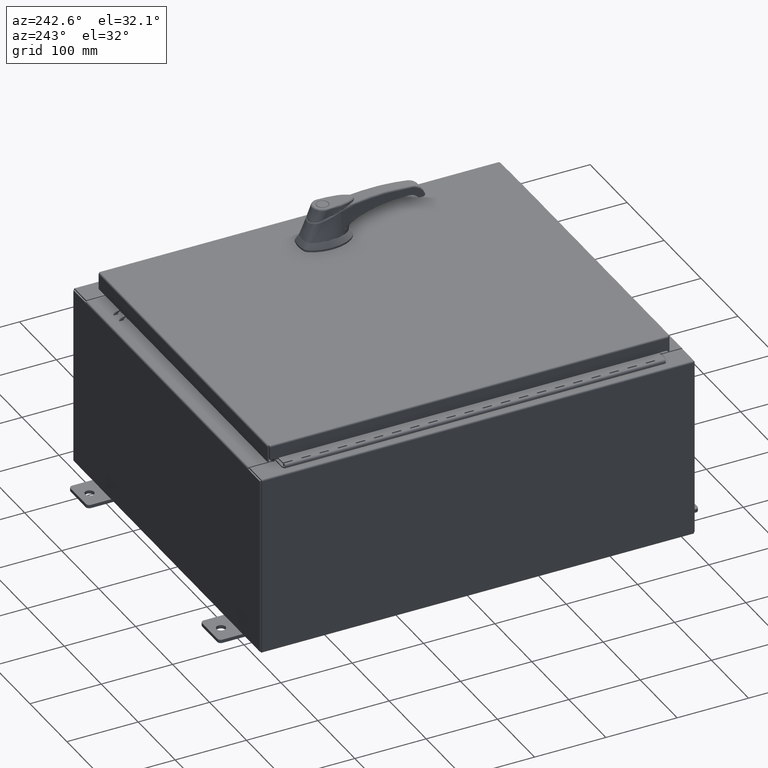
[diagram: clean part render]
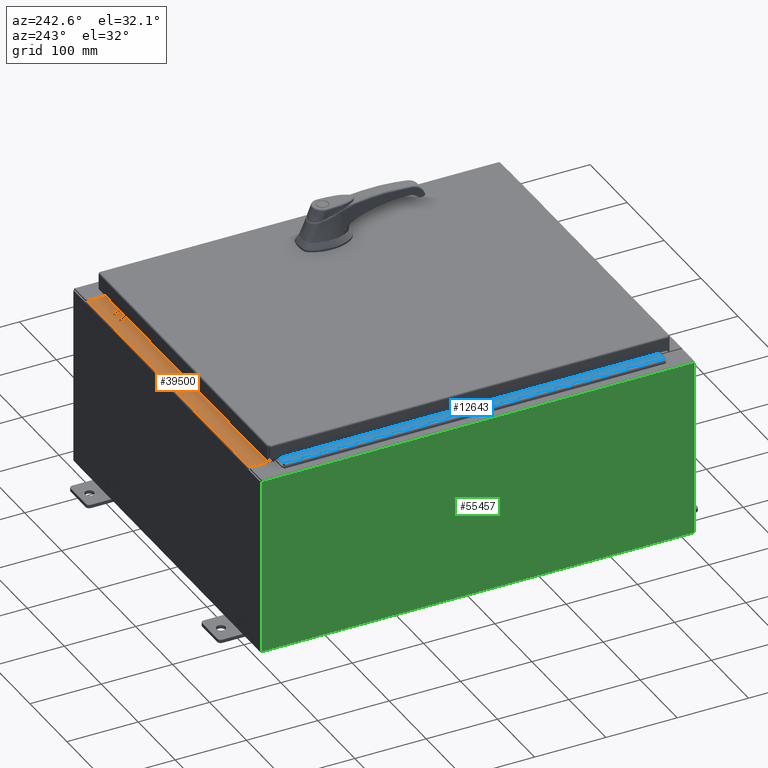
[diagram: same view with three faces highlighted in distinct colors, each labeled with its STEP entity id]
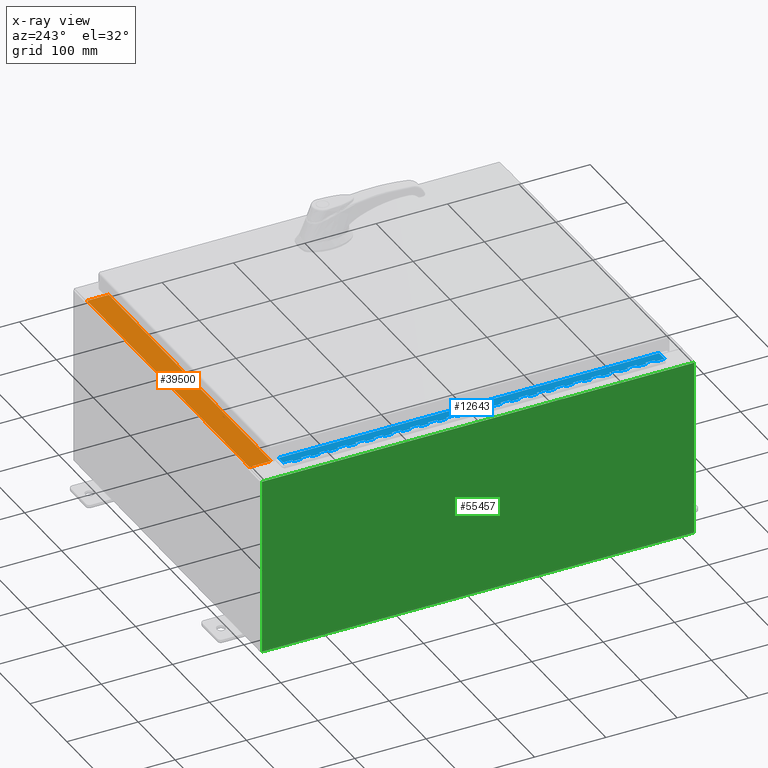
[diagram: x-ray of the same camera — body ghosted, the three highlighted faces saturated]
A machine part, auxiliary view with three faces highlighted in distinct colors.
The next image is the same camera in x-ray (body ghosted, the three faces saturated) — at least one of them is partly hidden behind the body in this view.
Their STEP definitions:

[orange] entity #39500 — the highlighted planar face has unit normal (0, 0, 1).
#542 = CARTESIAN_POINT ( 'NONE',  ( 8.637200000000000000, -1.300299999999999800, 5.000000000000004400 ) ) ;
#4826 = VECTOR ( 'NONE', #87409, 39.37007874015748100 ) ;
#7856 = VECTOR ( 'NONE', #105579, 39.37007874015748100 ) ;
#21297 = ORIENTED_EDGE ( 'NONE', *, *, #59590, .F. ) ;
#26018 = EDGE_CURVE ( 'NONE', #91501, #84611, #66295, .T. ) ;
#30757 = ORIENTED_EDGE ( 'NONE', *, *, #37994, .F. ) ;
#37712 = AXIS2_PLACEMENT_3D ( 'NONE', #48692, #111130, #58590 ) ;
#37994 = EDGE_CURVE ( 'NONE', #84611, #43539, #51492, .T. ) ;
#39500 = ADVANCED_FACE ( 'NONE', ( #91165 ), #49821, .T. ) ;
#43539 = VERTEX_POINT ( 'NONE', #94087 ) ;
#48692 = CARTESIAN_POINT ( 'NONE',  ( 0.0000000000000000000, 1.782631094477737600E-014, 5.000000000000000000 ) ) ;
#49821 = PLANE ( 'NONE',  #37712 ) ;
#51492 = LINE ( 'NONE', #95841, #4826 ) ;
#51715 = LINE ( 'NONE', #542, #7856 ) ;
#58590 = DIRECTION ( 'NONE',  ( 0.0000000000000000000, -1.000000000000000000, 3.566381192773190000E-015 ) ) ;
#58702 = DIRECTION ( 'NONE',  ( -1.000000000000000000, -6.325772226333218300E-017, 2.256011509776178200E-031 ) ) ;
#59100 = VERTEX_POINT ( 'NONE', #105790 ) ;
#59590 = EDGE_CURVE ( 'NONE', #59100, #91501, #51715, .T. ) ;
#66295 = LINE ( 'NONE', #70643, #104802 ) ;
#70643 = CARTESIAN_POINT ( 'NONE',  ( 8.637200000000000000, -1.287299999999999900, 5.000000000000003600 ) ) ;
#73544 = ORIENTED_EDGE ( 'NONE', *, *, #113538, .T. ) ;
#79732 = VECTOR ( 'NONE', #58702, 39.37007874015748100 ) ;
#80623 = CARTESIAN_POINT ( 'NONE',  ( -8.637200000000000000, -1.287299999999999200, 5.000000000000004400 ) ) ;
#83406 = CARTESIAN_POINT ( 'NONE',  ( 8.637200000000000000, -1.287299999999999900, 5.000000000000004400 ) ) ;
#84611 = VERTEX_POINT ( 'NONE', #80623 ) ;
#87310 = EDGE_LOOP ( 'NONE', ( #30757, #107015, #21297, #73544 ) ) ;
#87409 = DIRECTION ( 'NONE',  ( -0.0000000000000000000, 1.000000000000000000, -3.566381192773190000E-015 ) ) ;
#91165 = FACE_OUTER_BOUND ( 'NONE', #87310, .T. ) ;
#91501 = VERTEX_POINT ( 'NONE', #83406 ) ;
#94087 = CARTESIAN_POINT ( 'NONE',  ( -8.637200000000000000, -0.08770000000000081900, 5.000000000000000000 ) ) ;
#95841 = CARTESIAN_POINT ( 'NONE',  ( -8.637200000000000000, -0.07469999999999973900, 5.000000000000000000 ) ) ;
#97115 = DIRECTION ( 'NONE',  ( -1.000000000000000000, 0.0000000000000000000, 0.0000000000000000000 ) ) ;
#102522 = CARTESIAN_POINT ( 'NONE',  ( 5.547702242495411600E-018, -0.08770000000000081900, 5.000000000000000000 ) ) ;
#103131 = LINE ( 'NONE', #102522, #79732 ) ;
#104802 = VECTOR ( 'NONE', #97115, 39.37007874015748100 ) ;
#105579 = DIRECTION ( 'NONE',  ( -0.0000000000000000000, -1.000000000000000000, 3.566381192773190000E-015 ) ) ;
#105790 = CARTESIAN_POINT ( 'NONE',  ( 8.637200000000000000, -0.08770000000000047200, 5.000000000000000000 ) ) ;
#107015 = ORIENTED_EDGE ( 'NONE', *, *, #26018, .F. ) ;
#111130 = DIRECTION ( 'NONE',  ( 0.0000000000000000000, 3.566381192773190000E-015, 1.000000000000000000 ) ) ;
#113538 = EDGE_CURVE ( 'NONE', #59100, #43539, #103131, .T. ) ;

[blue] entity #12643 — the highlighted planar face has unit normal (-0, -0, 1).
#287 = CARTESIAN_POINT ( 'NONE',  ( -0.6869999999999982800, 0.5504999999999997700, -14.49999999999999800 ) ) ;
#363 = CARTESIAN_POINT ( 'NONE',  ( -0.6869999999999973900, 0.8004999999999995500, -17.50000000000000000 ) ) ;
#384 = DIRECTION ( 'NONE',  ( -3.389037039080723100E-015, -1.000000000000000000, 0.0000000000000000000 ) ) ;
#509 = VECTOR ( 'NONE', #75334, 39.37007874015748100 ) ;
#980 = DIRECTION ( 'NONE',  ( 0.0000000000000000000, -0.0000000000000000000, -1.000000000000000000 ) ) ;
#1204 = EDGE_CURVE ( 'NONE', #11150, #112337, #33061, .T. ) ;
#1372 = CARTESIAN_POINT ( 'NONE',  ( -0.6869999999999978300, 0.6754999999999996600, -17.00000000000000000 ) ) ;
#1525 = ORIENTED_EDGE ( 'NONE', *, *, #34455, .F. ) ;
#1571 = EDGE_CURVE ( 'NONE', #92335, #63316, #107053, .T. ) ;
#1901 = CARTESIAN_POINT ( 'NONE',  ( -0.6869999999999982800, 0.5504999999999997700, -5.500000000000000000 ) ) ;
#1942 = CARTESIAN_POINT ( 'NONE',  ( -0.6869999999999978300, 0.6754999999999996600, -21.00000000000000000 ) ) ;
#2036 = DIRECTION ( 'NONE',  ( 0.0000000000000000000, -0.0000000000000000000, -1.000000000000000000 ) ) ;
#2067 = VERTEX_POINT ( 'NONE', #25642 ) ;
#2119 = ORIENTED_EDGE ( 'NONE', *, *, #51321, .F. ) ;
#2436 = ORIENTED_EDGE ( 'NONE', *, *, #86983, .F. ) ;
#2652 = CARTESIAN_POINT ( 'NONE',  ( -0.6869999999999982800, 0.5504999999999997700, -6.499999999999999100 ) ) ;
#2771 = CARTESIAN_POINT ( 'NONE',  ( -0.6869999999999982800, 0.5504999999999997700, -12.49999999999999800 ) ) ;
#3132 = DIRECTION ( 'NONE',  ( 0.0000000000000000000, 0.0000000000000000000, 1.000000000000000000 ) ) ;
#3412 = VECTOR ( 'NONE', #97662, 39.37007874015748100 ) ;
#3496 = DIRECTION ( 'NONE',  ( 3.389037039080723100E-015, 1.000000000000000000, -0.0000000000000000000 ) ) ;
#3587 = CARTESIAN_POINT ( 'NONE',  ( -0.6869999999999982800, 0.5504999999999997700, -7.000000000000000000 ) ) ;
#3712 = VECTOR ( 'NONE', #46907, 39.37007874015748100 ) ;
#3812 = CARTESIAN_POINT ( 'NONE',  ( -0.6869999999999982800, 0.5504999999999997700, -15.50000000000000000 ) ) ;
#3935 = LINE ( 'NONE', #71245, #94447 ) ;
#3966 = CARTESIAN_POINT ( 'NONE',  ( -0.6869999999999982800, 0.5504999999999997700, -7.499999999999999100 ) ) ;
#4198 = CARTESIAN_POINT ( 'NONE',  ( -0.6869999999999973900, 0.8004999999999995500, -6.000000000000000900 ) ) ;
#4215 = LINE ( 'NONE', #113228, #97449 ) ;
#4389 = CARTESIAN_POINT ( 'NONE',  ( -0.6869999999999978300, 0.6754999999999996600, -21.00000000000000000 ) ) ;
#4397 = VERTEX_POINT ( 'NONE', #102975 ) ;
#4562 = ORIENTED_EDGE ( 'NONE', *, *, #17817, .F. ) ;
#4980 = CARTESIAN_POINT ( 'NONE',  ( -0.6869999999999978300, 0.6754999999999996600, -21.00000000000000000 ) ) ;
#5018 = LINE ( 'NONE', #63951, #25550 ) ;
#5069 = ORIENTED_EDGE ( 'NONE', *, *, #107690, .F. ) ;
#5643 = VERTEX_POINT ( 'NONE', #88205 ) ;
#5677 = LINE ( 'NONE', #110279, #44068 ) ;
#5683 = CARTESIAN_POINT ( 'NONE',  ( -0.6869999999999982800, 0.5504999999999997700, -11.50000000000000000 ) ) ;
#5945 = VERTEX_POINT ( 'NONE', #39670 ) ;
#5958 = EDGE_CURVE ( 'NONE', #5945, #8568, #56586, .T. ) ;
#6082 = EDGE_CURVE ( 'NONE', #86339, #59571, #51158, .T. ) ;
#6093 = EDGE_CURVE ( 'NONE', #43105, #28919, #74341, .T. ) ;
#6962 = CARTESIAN_POINT ( 'NONE',  ( -0.6869999999999982800, 0.5504999999999997700, -6.000000000000000900 ) ) ;
#6998 = VECTOR ( 'NONE', #78431, 39.37007874015748100 ) ;
#7092 = EDGE_CURVE ( 'NONE', #26241, #55311, #74229, .T. ) ;
#7109 = VERTEX_POINT ( 'NONE', #97252 ) ;
#7470 = LINE ( 'NONE', #68810, #51341 ) ;
#7503 = VERTEX_POINT ( 'NONE', #44634 ) ;
#7559 = DIRECTION ( 'NONE',  ( -3.389037039080723100E-015, -1.000000000000000000, 0.0000000000000000000 ) ) ;
#7564 = VERTEX_POINT ( 'NONE', #75719 ) ;
#7609 = CARTESIAN_POINT ( 'NONE',  ( -0.6869999999999973900, 0.8004999999999995500, -14.49999999999999800 ) ) ;
#7662 = CARTESIAN_POINT ( 'NONE',  ( -0.6869999999999978300, 0.6754999999999996600, -11.99999999999999800 ) ) ;
#7735 = ORIENTED_EDGE ( 'NONE', *, *, #29061, .F. ) ;
#7984 = LINE ( 'NONE', #53488, #31262 ) ;
#8568 = VERTEX_POINT ( 'NONE', #7662 ) ;
#8699 = ORIENTED_EDGE ( 'NONE', *, *, #78244, .F. ) ;
#8881 = ORIENTED_EDGE ( 'NONE', *, *, #54348, .T. ) ;
#8884 = EDGE_CURVE ( 'NONE', #10958, #89489, #35728, .T. ) ;
#9328 = VERTEX_POINT ( 'NONE', #101169 ) ;
#9361 = ORIENTED_EDGE ( 'NONE', *, *, #30060, .F. ) ;
#9920 = EDGE_CURVE ( 'NONE', #30490, #8568, #34434, .T. ) ;
#9927 = CARTESIAN_POINT ( 'NONE',  ( -0.6869999999999982800, 0.5504999999999997700, -17.50000000000000000 ) ) ;
#10092 = DIRECTION ( 'NONE',  ( 0.0000000000000000000, -0.0000000000000000000, -1.000000000000000000 ) ) ;
#10292 = EDGE_CURVE ( 'NONE', #60161, #73834, #46761, .T. ) ;
#10578 = VECTOR ( 'NONE', #85571, 39.37007874015748100 ) ;
#10673 = ORIENTED_EDGE ( 'NONE', *, *, #32286, .T. ) ;
#10675 = LINE ( 'NONE', #73867, #103956 ) ;
#10722 = CARTESIAN_POINT ( 'NONE',  ( -0.6869999999999973900, 0.8004999999999995500, -11.50000000000000000 ) ) ;
#10958 = VERTEX_POINT ( 'NONE', #108718 ) ;
#10965 = ORIENTED_EDGE ( 'NONE', *, *, #57411, .T. ) ;
#10998 = LINE ( 'NONE', #52199, #106959 ) ;
#11094 = VECTOR ( 'NONE', #99358, 39.37007874015748100 ) ;
#11150 = VERTEX_POINT ( 'NONE', #56703 ) ;
#11215 = VERTEX_POINT ( 'NONE', #44008 ) ;
#11219 = ORIENTED_EDGE ( 'NONE', *, *, #1204, .F. ) ;
#11375 = ORIENTED_EDGE ( 'NONE', *, *, #20985, .F. ) ;
#11519 = EDGE_CURVE ( 'NONE', #89489, #74130, #32920, .T. ) ;
#11615 = CARTESIAN_POINT ( 'NONE',  ( -0.6869999999999978300, 0.6754999999999996600, -8.500000000000000000 ) ) ;
#11713 = CARTESIAN_POINT ( 'NONE',  ( -0.6869999999999973900, 0.8004999999999995500, -8.500000000000000000 ) ) ;
#11752 = CARTESIAN_POINT ( 'NONE',  ( -0.6869999999999978300, 0.6754999999999996600, -21.00000000000000000 ) ) ;
#12080 = LINE ( 'NONE', #32265, #55901 ) ;
#12264 = VECTOR ( 'NONE', #384, 39.37007874015748100 ) ;
#12426 = VERTEX_POINT ( 'NONE', #34199 ) ;
#12434 = VECTOR ( 'NONE', #64421, 39.37007874015748100 ) ;
#12546 = CARTESIAN_POINT ( 'NONE',  ( -0.6869999999999982800, 0.5504999999999997700, -10.50000000000000000 ) ) ;
#12617 = CARTESIAN_POINT ( 'NONE',  ( -0.6869999999999978300, 0.6754999999999996600, -5.000000000000000000 ) ) ;
#12643 = ADVANCED_FACE ( 'NONE', ( #47855 ), #111859, .T. ) ;
#13878 = EDGE_CURVE ( 'NONE', #40748, #74130, #106717, .T. ) ;
#14092 = DIRECTION ( 'NONE',  ( 0.0000000000000000000, 0.0000000000000000000, 1.000000000000000000 ) ) ;
#14126 = CARTESIAN_POINT ( 'NONE',  ( -0.6869999999999982800, 0.5504999999999997700, -12.49999999999999800 ) ) ;
#14324 = VERTEX_POINT ( 'NONE', #41616 ) ;
#14680 = CARTESIAN_POINT ( 'NONE',  ( -0.6869999999999978300, 0.6754999999999996600, -2.999999999999999600 ) ) ;
#14744 = VECTOR ( 'NONE', #74392, 39.37007874015748100 ) ;
#14951 = CARTESIAN_POINT ( 'NONE',  ( -0.6869999999999978300, 0.6754999999999996600, -11.00000000000000000 ) ) ;
#14961 = VERTEX_POINT ( 'NONE', #9927 ) ;
#14996 = LINE ( 'NONE', #78562, #87689 ) ;
#15253 = LINE ( 'NONE', #63684, #35821 ) ;
#15423 = CARTESIAN_POINT ( 'NONE',  ( -0.6869999999999973900, 0.8004999999999995500, -9.500000000000000000 ) ) ;
#15481 = VECTOR ( 'NONE', #96292, 39.37007874015748100 ) ;
#15571 = ORIENTED_EDGE ( 'NONE', *, *, #51945, .F. ) ;
#16042 = VECTOR ( 'NONE', #108985, 39.37007874015748100 ) ;
#16448 = LINE ( 'NONE', #52270, #36980 ) ;
#16470 = EDGE_CURVE ( 'NONE', #37313, #46828, #28272, .T. ) ;
#16498 = VERTEX_POINT ( 'NONE', #52299 ) ;
#17025 = CARTESIAN_POINT ( 'NONE',  ( -0.6869999999999982800, 0.5504999999999997700, -2.999999999999999600 ) ) ;
#17223 = ORIENTED_EDGE ( 'NONE', *, *, #87252, .F. ) ;
#17260 = DIRECTION ( 'NONE',  ( 0.0000000000000000000, 0.0000000000000000000, 1.000000000000000000 ) ) ;
#17340 = EDGE_CURVE ( 'NONE', #49948, #112337, #56955, .T. ) ;
#17817 = EDGE_CURVE ( 'NONE', #79193, #11150, #29483, .T. ) ;
#17977 = EDGE_CURVE ( 'NONE', #41165, #87680, #109006, .T. ) ;
#18234 = ORIENTED_EDGE ( 'NONE', *, *, #38840, .F. ) ;
#18628 = VERTEX_POINT ( 'NONE', #45186 ) ;
#18751 = VECTOR ( 'NONE', #96254, 39.37007874015748100 ) ;
#18910 = CARTESIAN_POINT ( 'NONE',  ( -0.6869999999999978300, 0.6754999999999996600, -3.500000000000000000 ) ) ;
#19322 = EDGE_CURVE ( 'NONE', #48142, #76769, #7984, .T. ) ;
#19490 = DIRECTION ( 'NONE',  ( 0.0000000000000000000, -0.0000000000000000000, -1.000000000000000000 ) ) ;
#19632 = EDGE_CURVE ( 'NONE', #102421, #70949, #87458, .T. ) ;
#19881 = VECTOR ( 'NONE', #3132, 39.37007874015748100 ) ;
#20094 = LINE ( 'NONE', #101618, #66659 ) ;
#20505 = VECTOR ( 'NONE', #28357, 39.37007874015748100 ) ;
#20592 = CARTESIAN_POINT ( 'NONE',  ( -0.6870000000000022800, -0.6245000000000003900, 0.0000000000000000000 ) ) ;
#20780 = VERTEX_POINT ( 'NONE', #12617 ) ;
#20837 = CARTESIAN_POINT ( 'NONE',  ( -0.6869999999999978300, 0.6754999999999996600, -1.000000000000000000 ) ) ;
#20985 = EDGE_CURVE ( 'NONE', #26241, #32524, #83198, .T. ) ;
#21345 = LINE ( 'NONE', #93983, #67936 ) ;
#21472 = DIRECTION ( 'NONE',  ( 0.0000000000000000000, -0.0000000000000000000, -1.000000000000000000 ) ) ;
#22228 = VECTOR ( 'NONE', #72954, 39.37007874015748100 ) ;
#22485 = VECTOR ( 'NONE', #43137, 39.37007874015748100 ) ;
#22654 = LINE ( 'NONE', #63616, #69265 ) ;
#22661 = EDGE_CURVE ( 'NONE', #96480, #14324, #95511, .T. ) ;
#22763 = CARTESIAN_POINT ( 'NONE',  ( -0.6869999999999973900, 0.8004999999999995500, -10.00000000000000000 ) ) ;
#22924 = DIRECTION ( 'NONE',  ( 0.0000000000000000000, -0.0000000000000000000, -1.000000000000000000 ) ) ;
#23026 = EDGE_CURVE ( 'NONE', #47933, #49288, #52980, .T. ) ;
#23035 = ORIENTED_EDGE ( 'NONE', *, *, #104029, .F. ) ;
#23225 = CARTESIAN_POINT ( 'NONE',  ( -0.6869999999999978300, 0.6754999999999996600, -14.00000000000000000 ) ) ;
#23435 = CARTESIAN_POINT ( 'NONE',  ( -0.6869999999999978300, 0.6754999999999996600, -2.500000000000000000 ) ) ;
#23507 = EDGE_CURVE ( 'NONE', #32524, #18628, #83103, .T. ) ;
#23634 = LINE ( 'NONE', #363, #90847 ) ;
#23703 = CARTESIAN_POINT ( 'NONE',  ( -0.6869999999999978300, 0.6754999999999996600, -1.499999999999999800 ) ) ;
#23728 = VECTOR ( 'NONE', #56421, 39.37007874015748100 ) ;
#24068 = LINE ( 'NONE', #65813, #111832 ) ;
#24655 = ORIENTED_EDGE ( 'NONE', *, *, #19322, .F. ) ;
#24675 = ORIENTED_EDGE ( 'NONE', *, *, #108787, .T. ) ;
#24685 = CARTESIAN_POINT ( 'NONE',  ( -0.6869999999999973900, 0.8004999999999995500, -17.00000000000000000 ) ) ;
#24747 = VECTOR ( 'NONE', #87038, 39.37007874015748100 ) ;
#25039 = LINE ( 'NONE', #49487, #68927 ) ;
#25550 = VECTOR ( 'NONE', #65092, 39.37007874015748100 ) ;
#25642 = CARTESIAN_POINT ( 'NONE',  ( -0.6869999999999978300, 0.6754999999999996600, -18.50000000000000000 ) ) ;
#25678 = LINE ( 'NONE', #78711, #113441 ) ;
#25803 = VECTOR ( 'NONE', #3496, 39.37007874015748100 ) ;
#25839 = EDGE_CURVE ( 'NONE', #102421, #96305, #45815, .T. ) ;
#26211 = EDGE_CURVE ( 'NONE', #80055, #10958, #67630, .T. ) ;
#26241 = VERTEX_POINT ( 'NONE', #92505 ) ;
#26307 = LINE ( 'NONE', #22763, #52419 ) ;
#26721 = LINE ( 'NONE', #26761, #3412 ) ;
#26761 = CARTESIAN_POINT ( 'NONE',  ( -0.6869999999999973900, 0.8004999999999995500, -17.99999999999999600 ) ) ;
#26865 = VECTOR ( 'NONE', #50220, 39.37007874015748100 ) ;
#27038 = ORIENTED_EDGE ( 'NONE', *, *, #16470, .T. ) ;
#27081 = CARTESIAN_POINT ( 'NONE',  ( -0.6870000000000022800, -0.6245000000000003900, -21.00000000000000000 ) ) ;
#27401 = ORIENTED_EDGE ( 'NONE', *, *, #44043, .F. ) ;
#27465 = LINE ( 'NONE', #49249, #50847 ) ;
#27529 = VECTOR ( 'NONE', #2036, 39.37007874015748100 ) ;
#27857 = VERTEX_POINT ( 'NONE', #50749 ) ;
#27943 = DIRECTION ( 'NONE',  ( -3.389037039080723100E-015, -1.000000000000000000, 0.0000000000000000000 ) ) ;
#28255 = CARTESIAN_POINT ( 'NONE',  ( -0.6869999999999973900, 0.8004999999999995500, -2.000000000000000000 ) ) ;
#28272 = LINE ( 'NONE', #69502, #69413 ) ;
#28357 = DIRECTION ( 'NONE',  ( 0.0000000000000000000, 0.0000000000000000000, 1.000000000000000000 ) ) ;
#28557 = LINE ( 'NONE', #47186, #25803 ) ;
#28632 = ORIENTED_EDGE ( 'NONE', *, *, #28867, .F. ) ;
#28851 = DIRECTION ( 'NONE',  ( -3.389037039080723100E-015, -1.000000000000000000, 0.0000000000000000000 ) ) ;
#28867 = EDGE_CURVE ( 'NONE', #58901, #7109, #5677, .T. ) ;
#28919 = VERTEX_POINT ( 'NONE', #68471 ) ;
#29061 = EDGE_CURVE ( 'NONE', #7564, #60161, #30294, .T. ) ;
#29259 = CARTESIAN_POINT ( 'NONE',  ( -0.6869999999999973900, 0.8004999999999995500, -2.999999999999999600 ) ) ;
#29483 = LINE ( 'NONE', #99995, #96695 ) ;
#29620 = CARTESIAN_POINT ( 'NONE',  ( -0.6869999999999982800, 0.5504999999999997700, -8.500000000000000000 ) ) ;
#29777 = DIRECTION ( 'NONE',  ( 3.369016658928398200E-015, 1.000000000000000000, 0.0000000000000000000 ) ) ;
#30060 = EDGE_CURVE ( 'NONE', #37454, #101972, #94652, .T. ) ;
#30218 = DIRECTION ( 'NONE',  ( 0.0000000000000000000, -0.0000000000000000000, -1.000000000000000000 ) ) ;
#30294 = LINE ( 'NONE', #87254, #6998 ) ;
#30490 = VERTEX_POINT ( 'NONE', #44793 ) ;
#30569 = AXIS2_PLACEMENT_3D ( 'NONE', #111744, #111501, #111467 ) ;
#30694 = CARTESIAN_POINT ( 'NONE',  ( -0.6869999999999982800, 0.5504999999999997700, -12.99999999999999800 ) ) ;
#31192 = ORIENTED_EDGE ( 'NONE', *, *, #47888, .F. ) ;
#31262 = VECTOR ( 'NONE', #980, 39.37007874015748100 ) ;
#32008 = CARTESIAN_POINT ( 'NONE',  ( -0.6869999999999982800, 0.5504999999999997700, -10.00000000000000000 ) ) ;
#32107 = VECTOR ( 'NONE', #107020, 39.37007874015748100 ) ;
#32140 = VERTEX_POINT ( 'NONE', #106369 ) ;
#32265 = CARTESIAN_POINT ( 'NONE',  ( -0.6869999999999978300, 0.6754999999999996600, -21.00000000000000000 ) ) ;
#32286 = EDGE_CURVE ( 'NONE', #7564, #7503, #93663, .T. ) ;
#32505 = CARTESIAN_POINT ( 'NONE',  ( -0.6869999999999982800, 0.5504999999999997700, -3.500000000000000000 ) ) ;
#32524 = VERTEX_POINT ( 'NONE', #60622 ) ;
#32618 = EDGE_CURVE ( 'NONE', #64167, #5945, #82689, .T. ) ;
#32771 = CARTESIAN_POINT ( 'NONE',  ( -0.6869999999999973900, 0.8004999999999995500, -11.99999999999999800 ) ) ;
#32920 = LINE ( 'NONE', #109838, #100116 ) ;
#33061 = LINE ( 'NONE', #28255, #79629 ) ;
#33074 = LINE ( 'NONE', #2771, #27529 ) ;
#33124 = LINE ( 'NONE', #50723, #76950 ) ;
#33189 = VECTOR ( 'NONE', #41710, 39.37007874015748100 ) ;
#33531 = DIRECTION ( 'NONE',  ( 3.389037039080723100E-015, 1.000000000000000000, -0.0000000000000000000 ) ) ;
#33543 = CARTESIAN_POINT ( 'NONE',  ( -0.6869999999999973900, 0.8004999999999995500, -9.000000000000000000 ) ) ;
#33975 = VECTOR ( 'NONE', #39427, 39.37007874015748100 ) ;
#34199 = CARTESIAN_POINT ( 'NONE',  ( -0.6869999999999978300, 0.6754999999999996600, -10.50000000000000000 ) ) ;
#34351 = ORIENTED_EDGE ( 'NONE', *, *, #53253, .F. ) ;
#34352 = LINE ( 'NONE', #46667, #98823 ) ;
#34434 = LINE ( 'NONE', #52340, #54975 ) ;
#34455 = EDGE_CURVE ( 'NONE', #14324, #56658, #15253, .T. ) ;
#35075 = ORIENTED_EDGE ( 'NONE', *, *, #93564, .F. ) ;
#35559 = LINE ( 'NONE', #105425, #12264 ) ;
#35728 = LINE ( 'NONE', #3812, #12434 ) ;
#35821 = VECTOR ( 'NONE', #72490, 39.37007874015748100 ) ;
#35934 = EDGE_CURVE ( 'NONE', #87680, #89793, #33124, .T. ) ;
#36045 = ORIENTED_EDGE ( 'NONE', *, *, #8884, .F. ) ;
#36348 = CARTESIAN_POINT ( 'NONE',  ( -0.6869999999999978300, 0.6754999999999996600, -19.50000000000000000 ) ) ;
#36361 = CARTESIAN_POINT ( 'NONE',  ( -0.6869999999999973900, 0.8004999999999995500, -20.50000000000000400 ) ) ;
#36403 = DIRECTION ( 'NONE',  ( 0.0000000000000000000, 0.0000000000000000000, 1.000000000000000000 ) ) ;
#36941 = EDGE_CURVE ( 'NONE', #49646, #81381, #27465, .T. ) ;
#36980 = VECTOR ( 'NONE', #96302, 39.37007874015748100 ) ;
#37258 = CARTESIAN_POINT ( 'NONE',  ( -0.6869999999999982800, 0.5504999999999997700, -17.50000000000000000 ) ) ;
#37313 = VERTEX_POINT ( 'NONE', #18910 ) ;
#37416 = LINE ( 'NONE', #92225, #104706 ) ;
#37436 = EDGE_CURVE ( 'NONE', #14961, #49216, #90507, .T. ) ;
#37454 = VERTEX_POINT ( 'NONE', #99370 ) ;
#37868 = DIRECTION ( 'NONE',  ( -3.389037039080723100E-015, -1.000000000000000000, 0.0000000000000000000 ) ) ;
#37999 = VECTOR ( 'NONE', #75445, 39.37007874015748100 ) ;
#38099 = DIRECTION ( 'NONE',  ( -3.389037039080723100E-015, -1.000000000000000000, 0.0000000000000000000 ) ) ;
#38840 = EDGE_CURVE ( 'NONE', #104157, #92335, #76142, .T. ) ;
#39128 = EDGE_CURVE ( 'NONE', #9328, #86892, #98114, .T. ) ;
#39261 = EDGE_CURVE ( 'NONE', #30490, #61271, #22654, .T. ) ;
#39295 = ORIENTED_EDGE ( 'NONE', *, *, #84327, .T. ) ;
#39341 = ORIENTED_EDGE ( 'NONE', *, *, #79386, .F. ) ;
#39427 = DIRECTION ( 'NONE',  ( 3.389037039080723100E-015, 1.000000000000000000, -0.0000000000000000000 ) ) ;
#39670 = CARTESIAN_POINT ( 'NONE',  ( -0.6869999999999982800, 0.5504999999999997700, -11.99999999999999800 ) ) ;
#39757 = ORIENTED_EDGE ( 'NONE', *, *, #13878, .T. ) ;
#40042 = ORIENTED_EDGE ( 'NONE', *, *, #57700, .F. ) ;
#40298 = DIRECTION ( 'NONE',  ( 0.0000000000000000000, 0.0000000000000000000, 1.000000000000000000 ) ) ;
#40578 = LINE ( 'NONE', #53826, #107773 ) ;
#40737 = ORIENTED_EDGE ( 'NONE', *, *, #23026, .F. ) ;
#40748 = VERTEX_POINT ( 'NONE', #67683 ) ;
#41165 = VERTEX_POINT ( 'NONE', #67589 ) ;
#41374 = CARTESIAN_POINT ( 'NONE',  ( -0.6869999999999982800, 0.5504999999999997700, -6.499999999999999100 ) ) ;
#41509 = EDGE_CURVE ( 'NONE', #49646, #46931, #25039, .T. ) ;
#41562 = VECTOR ( 'NONE', #97585, 39.37007874015748100 ) ;
#41616 = CARTESIAN_POINT ( 'NONE',  ( -0.6869999999999982800, 0.5504999999999997700, -20.00000000000000000 ) ) ;
#41710 = DIRECTION ( 'NONE',  ( 0.0000000000000000000, 0.0000000000000000000, 1.000000000000000000 ) ) ;
#41996 = EDGE_CURVE ( 'NONE', #11215, #14961, #23634, .T. ) ;
#42095 = LINE ( 'NONE', #43425, #18751 ) ;
#42345 = LINE ( 'NONE', #4980, #62818 ) ;
#42522 = EDGE_CURVE ( 'NONE', #16498, #20780, #42803, .T. ) ;
#42803 = LINE ( 'NONE', #11752, #22228 ) ;
#42864 = EDGE_CURVE ( 'NONE', #66797, #55311, #52372, .T. ) ;
#43017 = EDGE_CURVE ( 'NONE', #98707, #66797, #87976, .T. ) ;
#43105 = VERTEX_POINT ( 'NONE', #83128 ) ;
#43137 = DIRECTION ( 'NONE',  ( -3.389037039080723100E-015, -1.000000000000000000, 0.0000000000000000000 ) ) ;
#43425 = CARTESIAN_POINT ( 'NONE',  ( -0.6869999999999973900, 0.8004999999999995500, -19.00000000000000000 ) ) ;
#43581 = CARTESIAN_POINT ( 'NONE',  ( -0.6869999999999978300, 0.6754999999999996600, -2.000000000000000000 ) ) ;
#43748 = CARTESIAN_POINT ( 'NONE',  ( -0.6869999999999978300, 0.6754999999999996600, -21.00000000000000000 ) ) ;
#43759 = VECTOR ( 'NONE', #47870, 39.37007874015748100 ) ;
#43927 = CARTESIAN_POINT ( 'NONE',  ( -0.6869999999999978300, 0.6754999999999996600, -8.000000000000000000 ) ) ;
#43929 = CARTESIAN_POINT ( 'NONE',  ( -0.6869999999999978300, 0.6754999999999996600, -19.00000000000000000 ) ) ;
#44008 = CARTESIAN_POINT ( 'NONE',  ( -0.6869999999999978300, 0.6754999999999996600, -17.50000000000000000 ) ) ;
#44043 = EDGE_CURVE ( 'NONE', #86892, #53829, #42095, .T. ) ;
#44068 = VECTOR ( 'NONE', #22924, 39.37007874015748100 ) ;
#44083 = DIRECTION ( 'NONE',  ( -3.389037039080723100E-015, -1.000000000000000000, 0.0000000000000000000 ) ) ;
#44354 = EDGE_CURVE ( 'NONE', #104157, #71976, #5018, .T. ) ;
#44395 = VECTOR ( 'NONE', #28851, 39.37007874015748100 ) ;
#44634 = CARTESIAN_POINT ( 'NONE',  ( -0.6869999999999978300, 0.6754999999999996600, -4.000000000000000000 ) ) ;
#44793 = CARTESIAN_POINT ( 'NONE',  ( -0.6869999999999978300, 0.6754999999999996600, -12.49999999999999800 ) ) ;
#45045 = EDGE_CURVE ( 'NONE', #76769, #52863, #83117, .T. ) ;
#45186 = CARTESIAN_POINT ( 'NONE',  ( -0.6869999999999978300, 0.6754999999999996600, 0.0000000000000000000 ) ) ;
#45815 = LINE ( 'NONE', #77974, #22485 ) ;
#46667 = CARTESIAN_POINT ( 'NONE',  ( -0.6869999999999982800, 0.5504999999999997700, -5.500000000000000000 ) ) ;
#46761 = LINE ( 'NONE', #85559, #85135 ) ;
#46828 = VERTEX_POINT ( 'NONE', #14680 ) ;
#46907 = DIRECTION ( 'NONE',  ( 3.389037039080723100E-015, 1.000000000000000000, -0.0000000000000000000 ) ) ;
#46931 = VERTEX_POINT ( 'NONE', #47814 ) ;
#47186 = CARTESIAN_POINT ( 'NONE',  ( -0.6869999999999973900, 0.8004999999999995500, -5.000000000000000000 ) ) ;
#47308 = CARTESIAN_POINT ( 'NONE',  ( -0.6869999999999978300, 0.6754999999999996600, -16.00000000000000000 ) ) ;
#47356 = ORIENTED_EDGE ( 'NONE', *, *, #55564, .F. ) ;
#47814 = CARTESIAN_POINT ( 'NONE',  ( -0.6869999999999978300, 0.6754999999999996600, -6.000000000000000900 ) ) ;
#47855 = FACE_OUTER_BOUND ( 'NONE', #86808, .T. ) ;
#47870 = DIRECTION ( 'NONE',  ( 3.389037039080723100E-015, 1.000000000000000000, -0.0000000000000000000 ) ) ;
#47888 = EDGE_CURVE ( 'NONE', #5643, #100681, #70411, .T. ) ;
#47933 = VERTEX_POINT ( 'NONE', #32505 ) ;
#48142 = VERTEX_POINT ( 'NONE', #12546 ) ;
#48371 = VECTOR ( 'NONE', #49991, 39.37007874015748100 ) ;
#48515 = DIRECTION ( 'NONE',  ( -3.389037039080723100E-015, -1.000000000000000000, 0.0000000000000000000 ) ) ;
#48537 = ORIENTED_EDGE ( 'NONE', *, *, #90942, .F. ) ;
#49019 = ORIENTED_EDGE ( 'NONE', *, *, #86955, .T. ) ;
#49064 = DIRECTION ( 'NONE',  ( 0.0000000000000000000, 0.0000000000000000000, 1.000000000000000000 ) ) ;
#49216 = VERTEX_POINT ( 'NONE', #75348 ) ;
#49249 = CARTESIAN_POINT ( 'NONE',  ( -0.6869999999999973900, 0.8004999999999995500, -6.499999999999999100 ) ) ;
#49288 = VERTEX_POINT ( 'NONE', #67314 ) ;
#49487 = CARTESIAN_POINT ( 'NONE',  ( -0.6869999999999978300, 0.6754999999999996600, -21.00000000000000000 ) ) ;
#49588 = VECTOR ( 'NONE', #53284, 39.37007874015748100 ) ;
#49646 = VERTEX_POINT ( 'NONE', #75572 ) ;
#49742 = CARTESIAN_POINT ( 'NONE',  ( -0.6869999999999978300, 0.6754999999999996600, -21.00000000000000000 ) ) ;
#49948 = VERTEX_POINT ( 'NONE', #23435 ) ;
#49991 = DIRECTION ( 'NONE',  ( 0.0000000000000000000, 0.0000000000000000000, 1.000000000000000000 ) ) ;
#50056 = VERTEX_POINT ( 'NONE', #6962 ) ;
#50097 = CARTESIAN_POINT ( 'NONE',  ( -0.6869999999999982800, 0.5504999999999997700, -20.50000000000000400 ) ) ;
#50220 = DIRECTION ( 'NONE',  ( 0.0000000000000000000, -0.0000000000000000000, -1.000000000000000000 ) ) ;
#50723 = CARTESIAN_POINT ( 'NONE',  ( -0.6869999999999982800, 0.5504999999999997700, -14.49999999999999800 ) ) ;
#50749 = CARTESIAN_POINT ( 'NONE',  ( -0.6869999999999982800, 0.5504999999999997700, -9.500000000000000000 ) ) ;
#50834 = CARTESIAN_POINT ( 'NONE',  ( -0.6869999999999973900, 0.8004999999999995500, -11.00000000000000000 ) ) ;
#50847 = VECTOR ( 'NONE', #101788, 39.37007874015748100 ) ;
#50953 = CARTESIAN_POINT ( 'NONE',  ( -0.6869999999999978300, 0.6754999999999996600, -7.499999999999999100 ) ) ;
#50961 = ORIENTED_EDGE ( 'NONE', *, *, #57304, .F. ) ;
#51017 = VECTOR ( 'NONE', #80787, 39.37007874015748100 ) ;
#51057 = VECTOR ( 'NONE', #105322, 39.37007874015748100 ) ;
#51158 = LINE ( 'NONE', #78176, #100534 ) ;
#51226 = VECTOR ( 'NONE', #80614, 39.37007874015748100 ) ;
#51321 = EDGE_CURVE ( 'NONE', #66657, #32140, #26307, .T. ) ;
#51341 = VECTOR ( 'NONE', #7559, 39.37007874015748100 ) ;
#51351 = ORIENTED_EDGE ( 'NONE', *, *, #84223, .F. ) ;
#51508 = VECTOR ( 'NONE', #10092, 39.37007874015748100 ) ;
#51945 = EDGE_CURVE ( 'NONE', #81381, #56578, #89362, .T. ) ;
#52199 = CARTESIAN_POINT ( 'NONE',  ( -0.6869999999999978300, 0.6754999999999996600, -21.00000000000000000 ) ) ;
#52270 = CARTESIAN_POINT ( 'NONE',  ( -0.6869999999999982800, 0.5504999999999997700, -9.500000000000000000 ) ) ;
#52295 = CARTESIAN_POINT ( 'NONE',  ( -0.6869999999999982800, 0.5504999999999997700, -8.500000000000000000 ) ) ;
#52299 = CARTESIAN_POINT ( 'NONE',  ( -0.6869999999999978300, 0.6754999999999996600, -5.500000000000000000 ) ) ;
#52340 = CARTESIAN_POINT ( 'NONE',  ( -0.6869999999999978300, 0.6754999999999996600, -21.00000000000000000 ) ) ;
#52372 = LINE ( 'NONE', #96961, #49588 ) ;
#52419 = VECTOR ( 'NONE', #55306, 39.37007874015748100 ) ;
#52637 = VERTEX_POINT ( 'NONE', #30694 ) ;
#52863 = VERTEX_POINT ( 'NONE', #14951 ) ;
#52980 = LINE ( 'NONE', #58955, #26865 ) ;
#53253 = EDGE_CURVE ( 'NONE', #113063, #50056, #34352, .T. ) ;
#53284 = DIRECTION ( 'NONE',  ( 0.0000000000000000000, -0.0000000000000000000, -1.000000000000000000 ) ) ;
#53488 = CARTESIAN_POINT ( 'NONE',  ( -0.6869999999999982800, 0.5504999999999997700, -10.50000000000000000 ) ) ;
#53745 = LINE ( 'NONE', #10722, #51017 ) ;
#53826 = CARTESIAN_POINT ( 'NONE',  ( -0.6869999999999973900, 0.8004999999999995500, -16.50000000000000000 ) ) ;
#53829 = VERTEX_POINT ( 'NONE', #43929 ) ;
#53928 = ORIENTED_EDGE ( 'NONE', *, *, #17977, .F. ) ;
#53951 = LINE ( 'NONE', #62921, #51226 ) ;
#54011 = ORIENTED_EDGE ( 'NONE', *, *, #98242, .F. ) ;
#54052 = CARTESIAN_POINT ( 'NONE',  ( -0.6869999999999982800, 0.5504999999999997700, -21.00000000000000000 ) ) ;
#54057 = ORIENTED_EDGE ( 'NONE', *, *, #36941, .F. ) ;
#54348 = EDGE_CURVE ( 'NONE', #66474, #18628, #10998, .T. ) ;
#54508 = CARTESIAN_POINT ( 'NONE',  ( -0.6869999999999973900, 0.8004999999999995500, -14.00000000000000000 ) ) ;
#54607 = EDGE_CURVE ( 'NONE', #2067, #56216, #93201, .T. ) ;
#54850 = DIRECTION ( 'NONE',  ( 3.389037039080723100E-015, 1.000000000000000000, -0.0000000000000000000 ) ) ;
#54975 = VECTOR ( 'NONE', #87086, 39.37007874015748100 ) ;
#55306 = DIRECTION ( 'NONE',  ( 3.389037039080723100E-015, 1.000000000000000000, -0.0000000000000000000 ) ) ;
#55311 = VERTEX_POINT ( 'NONE', #54052 ) ;
#55438 = DIRECTION ( 'NONE',  ( 0.0000000000000000000, -0.0000000000000000000, -1.000000000000000000 ) ) ;
#55564 = EDGE_CURVE ( 'NONE', #50056, #46931, #113651, .T. ) ;
#55598 = CARTESIAN_POINT ( 'NONE',  ( -0.6869999999999978300, 0.6754999999999996600, -21.00000000000000000 ) ) ;
#55800 = ORIENTED_EDGE ( 'NONE', *, *, #72514, .F. ) ;
#55901 = VECTOR ( 'NONE', #75850, 39.37007874015748100 ) ;
#56080 = ORIENTED_EDGE ( 'NONE', *, *, #58906, .F. ) ;
#56216 = VERTEX_POINT ( 'NONE', #59133 ) ;
#56421 = DIRECTION ( 'NONE',  ( 0.0000000000000000000, 0.0000000000000000000, 1.000000000000000000 ) ) ;
#56441 = LINE ( 'NONE', #76527, #33189 ) ;
#56578 = VERTEX_POINT ( 'NONE', #3587 ) ;
#56586 = LINE ( 'NONE', #32771, #41562 ) ;
#56658 = VERTEX_POINT ( 'NONE', #69130 ) ;
#56703 = CARTESIAN_POINT ( 'NONE',  ( -0.6869999999999982800, 0.5504999999999997700, -2.000000000000000000 ) ) ;
#56955 = LINE ( 'NONE', #43748, #98151 ) ;
#56969 = VECTOR ( 'NONE', #29777, 39.37007874015748100 ) ;
#57119 = LINE ( 'NONE', #15423, #10578 ) ;
#57299 = ORIENTED_EDGE ( 'NONE', *, *, #45045, .F. ) ;
#57304 = EDGE_CURVE ( 'NONE', #96305, #69196, #10675, .T. ) ;
#57411 = EDGE_CURVE ( 'NONE', #80041, #101972, #42345, .T. ) ;
#57700 = EDGE_CURVE ( 'NONE', #73834, #20780, #28557, .T. ) ;
#58167 = ORIENTED_EDGE ( 'NONE', *, *, #41509, .T. ) ;
#58178 = DIRECTION ( 'NONE',  ( 3.389037039080723100E-015, 1.000000000000000000, -0.0000000000000000000 ) ) ;
#58901 = VERTEX_POINT ( 'NONE', #83977 ) ;
#58906 = EDGE_CURVE ( 'NONE', #12426, #48142, #61321, .T. ) ;
#58955 = CARTESIAN_POINT ( 'NONE',  ( -0.6869999999999982800, 0.5504999999999997700, -3.500000000000000000 ) ) ;
#59017 = LINE ( 'NONE', #33543, #82396 ) ;
#59114 = VERTEX_POINT ( 'NONE', #36348 ) ;
#59133 = CARTESIAN_POINT ( 'NONE',  ( -0.6869999999999978300, 0.6754999999999996600, -17.99999999999999600 ) ) ;
#59350 = CARTESIAN_POINT ( 'NONE',  ( -0.6869999999999982800, 0.5504999999999997700, -1.499999999999999800 ) ) ;
#59468 = DIRECTION ( 'NONE',  ( 0.0000000000000000000, -0.0000000000000000000, -1.000000000000000000 ) ) ;
#59571 = VERTEX_POINT ( 'NONE', #17025 ) ;
#59641 = ORIENTED_EDGE ( 'NONE', *, *, #78604, .F. ) ;
#60071 = DIRECTION ( 'NONE',  ( 0.0000000000000000000, 0.0000000000000000000, 1.000000000000000000 ) ) ;
#60161 = VERTEX_POINT ( 'NONE', #95103 ) ;
#60622 = CARTESIAN_POINT ( 'NONE',  ( -0.6869999999999998300, 0.07549999999999991400, 0.0000000000000000000 ) ) ;
#60659 = DIRECTION ( 'NONE',  ( 0.0000000000000000000, 0.0000000000000000000, 1.000000000000000000 ) ) ;
#60675 = DIRECTION ( 'NONE',  ( 0.0000000000000000000, 0.0000000000000000000, 1.000000000000000000 ) ) ;
#60914 = DIRECTION ( 'NONE',  ( 0.0000000000000000000, 0.0000000000000000000, 1.000000000000000000 ) ) ;
#61089 = CARTESIAN_POINT ( 'NONE',  ( -0.6869999999999978300, 0.6754999999999996600, -21.00000000000000000 ) ) ;
#61251 = EDGE_CURVE ( 'NONE', #52637, #28919, #24068, .T. ) ;
#61271 = VERTEX_POINT ( 'NONE', #14126 ) ;
#61321 = LINE ( 'NONE', #110397, #37999 ) ;
#61644 = VECTOR ( 'NONE', #89801, 39.37007874015748100 ) ;
#61694 = CARTESIAN_POINT ( 'NONE',  ( -0.6869999999999982800, 0.5504999999999997700, -11.00000000000000000 ) ) ;
#61714 = LINE ( 'NONE', #49742, #105676 ) ;
#61803 = LINE ( 'NONE', #97460, #105776 ) ;
#62569 = DIRECTION ( 'NONE',  ( -3.389037039080723100E-015, -1.000000000000000000, 0.0000000000000000000 ) ) ;
#62593 = LINE ( 'NONE', #73640, #16042 ) ;
#62818 = VECTOR ( 'NONE', #65830, 39.37007874015748100 ) ;
#62921 = CARTESIAN_POINT ( 'NONE',  ( -0.6869999999999973900, 0.8004999999999995500, -8.000000000000000000 ) ) ;
#62967 = CARTESIAN_POINT ( 'NONE',  ( -0.6869999999999978300, 0.6754999999999996600, -20.50000000000000400 ) ) ;
#63316 = VERTEX_POINT ( 'NONE', #101046 ) ;
#63455 = DIRECTION ( 'NONE',  ( 3.389037039080723100E-015, 1.000000000000000000, -0.0000000000000000000 ) ) ;
#63616 = CARTESIAN_POINT ( 'NONE',  ( -0.6869999999999973900, 0.8004999999999995500, -12.49999999999999800 ) ) ;
#63654 = ORIENTED_EDGE ( 'NONE', *, *, #19632, .T. ) ;
#63684 = CARTESIAN_POINT ( 'NONE',  ( -0.6869999999999973900, 0.8004999999999995500, -20.00000000000000000 ) ) ;
#63951 = CARTESIAN_POINT ( 'NONE',  ( -0.6869999999999978300, 0.6754999999999996600, -21.00000000000000000 ) ) ;
#63983 = ORIENTED_EDGE ( 'NONE', *, *, #42864, .F. ) ;
#64167 = VERTEX_POINT ( 'NONE', #5683 ) ;
#64421 = DIRECTION ( 'NONE',  ( 0.0000000000000000000, -0.0000000000000000000, -1.000000000000000000 ) ) ;
#64591 = ORIENTED_EDGE ( 'NONE', *, *, #9920, .T. ) ;
#65092 = DIRECTION ( 'NONE',  ( 0.0000000000000000000, 0.0000000000000000000, 1.000000000000000000 ) ) ;
#65145 = EDGE_CURVE ( 'NONE', #89793, #4397, #97721, .T. ) ;
#65621 = CARTESIAN_POINT ( 'NONE',  ( -0.6869999999999973900, 0.8004999999999995500, -15.50000000000000000 ) ) ;
#65813 = CARTESIAN_POINT ( 'NONE',  ( -0.6869999999999973900, 0.8004999999999995500, -12.99999999999999800 ) ) ;
#65830 = DIRECTION ( 'NONE',  ( 0.0000000000000000000, 0.0000000000000000000, 1.000000000000000000 ) ) ;
#65835 = ORIENTED_EDGE ( 'NONE', *, *, #92008, .F. ) ;
#65896 = ORIENTED_EDGE ( 'NONE', *, *, #7092, .T. ) ;
#65963 = VECTOR ( 'NONE', #102743, 39.37007874015748100 ) ;
#66097 = EDGE_CURVE ( 'NONE', #11215, #104783, #56441, .T. ) ;
#66474 = VERTEX_POINT ( 'NONE', #107153 ) ;
#66571 = DIRECTION ( 'NONE',  ( 0.0000000000000000000, 0.0000000000000000000, 1.000000000000000000 ) ) ;
#66657 = VERTEX_POINT ( 'NONE', #32008 ) ;
#66659 = VECTOR ( 'NONE', #49064, 39.37007874015748100 ) ;
#66797 = VERTEX_POINT ( 'NONE', #50097 ) ;
#67098 = DIRECTION ( 'NONE',  ( 3.389037039080723100E-015, 1.000000000000000000, -0.0000000000000000000 ) ) ;
#67314 = CARTESIAN_POINT ( 'NONE',  ( -0.6869999999999982800, 0.5504999999999997700, -4.000000000000000000 ) ) ;
#67538 = ORIENTED_EDGE ( 'NONE', *, *, #104163, .F. ) ;
#67589 = CARTESIAN_POINT ( 'NONE',  ( -0.6869999999999978300, 0.6754999999999996600, -14.49999999999999800 ) ) ;
#67612 = ORIENTED_EDGE ( 'NONE', *, *, #17340, .T. ) ;
#67630 = LINE ( 'NONE', #65621, #44395 ) ;
#67683 = CARTESIAN_POINT ( 'NONE',  ( -0.6869999999999978300, 0.6754999999999996600, -16.50000000000000000 ) ) ;
#67892 = ORIENTED_EDGE ( 'NONE', *, *, #41996, .F. ) ;
#67936 = VECTOR ( 'NONE', #102859, 39.37007874015748100 ) ;
#67982 = ORIENTED_EDGE ( 'NONE', *, *, #22661, .F. ) ;
#68093 = CARTESIAN_POINT ( 'NONE',  ( -0.6869999999999978300, 0.6754999999999996600, -21.00000000000000000 ) ) ;
#68121 = LINE ( 'NONE', #29259, #3712 ) ;
#68471 = CARTESIAN_POINT ( 'NONE',  ( -0.6869999999999978300, 0.6754999999999996600, -12.99999999999999800 ) ) ;
#68810 = CARTESIAN_POINT ( 'NONE',  ( -0.6869999999999973900, 0.8004999999999995500, -13.50000000000000000 ) ) ;
#68927 = VECTOR ( 'NONE', #40298, 39.37007874015748100 ) ;
#69130 = CARTESIAN_POINT ( 'NONE',  ( -0.6869999999999978300, 0.6754999999999996600, -20.00000000000000000 ) ) ;
#69196 = VERTEX_POINT ( 'NONE', #104788 ) ;
#69265 = VECTOR ( 'NONE', #72419, 39.37007874015748100 ) ;
#69413 = VECTOR ( 'NONE', #60659, 39.37007874015748100 ) ;
#69423 = VECTOR ( 'NONE', #104365, 39.37007874015748100 ) ;
#69502 = CARTESIAN_POINT ( 'NONE',  ( -0.6869999999999978300, 0.6754999999999996600, -21.00000000000000000 ) ) ;
#69739 = CARTESIAN_POINT ( 'NONE',  ( -0.6869999999999982800, 0.5504999999999997700, -19.00000000000000000 ) ) ;
#69774 = CARTESIAN_POINT ( 'NONE',  ( -0.6869999999999973900, 0.8004999999999995500, -3.500000000000000000 ) ) ;
#69887 = DIRECTION ( 'NONE',  ( 3.389037039080723100E-015, 1.000000000000000000, -0.0000000000000000000 ) ) ;
#69985 = EDGE_CURVE ( 'NONE', #96613, #87957, #3935, .T. ) ;
#70060 = ORIENTED_EDGE ( 'NONE', *, *, #26211, .F. ) ;
#70411 = LINE ( 'NONE', #84225, #509 ) ;
#70453 = ORIENTED_EDGE ( 'NONE', *, *, #91777, .F. ) ;
#70572 = ORIENTED_EDGE ( 'NONE', *, *, #65145, .F. ) ;
#70575 = ORIENTED_EDGE ( 'NONE', *, *, #10292, .F. ) ;
#70949 = VERTEX_POINT ( 'NONE', #84373 ) ;
#70996 = EDGE_CURVE ( 'NONE', #98707, #56658, #12080, .T. ) ;
#71245 = CARTESIAN_POINT ( 'NONE',  ( -0.6869999999999978300, 0.6754999999999996600, -21.00000000000000000 ) ) ;
#71976 = VERTEX_POINT ( 'NONE', #43927 ) ;
#72288 = EDGE_CURVE ( 'NONE', #59571, #46828, #68121, .T. ) ;
#72319 = EDGE_CURVE ( 'NONE', #59114, #96480, #62593, .T. ) ;
#72419 = DIRECTION ( 'NONE',  ( -3.389037039080723100E-015, -1.000000000000000000, 0.0000000000000000000 ) ) ;
#72490 = DIRECTION ( 'NONE',  ( 3.389037039080723100E-015, 1.000000000000000000, -0.0000000000000000000 ) ) ;
#72514 = EDGE_CURVE ( 'NONE', #96613, #27857, #57119, .T. ) ;
#72613 = ORIENTED_EDGE ( 'NONE', *, *, #1571, .F. ) ;
#72682 = CARTESIAN_POINT ( 'NONE',  ( -0.6869999999999973900, 0.8004999999999995500, -2.500000000000000000 ) ) ;
#72954 = DIRECTION ( 'NONE',  ( 0.0000000000000000000, 0.0000000000000000000, 1.000000000000000000 ) ) ;
#73071 = ORIENTED_EDGE ( 'NONE', *, *, #72288, .F. ) ;
#73594 = ORIENTED_EDGE ( 'NONE', *, *, #44354, .T. ) ;
#73640 = CARTESIAN_POINT ( 'NONE',  ( -0.6869999999999973900, 0.8004999999999995500, -19.50000000000000000 ) ) ;
#73834 = VERTEX_POINT ( 'NONE', #95623 ) ;
#73867 = CARTESIAN_POINT ( 'NONE',  ( -0.6869999999999982800, 0.5504999999999997700, -7.499999999999999100 ) ) ;
#74130 = VERTEX_POINT ( 'NONE', #47308 ) ;
#74229 = LINE ( 'NONE', #27081, #51057 ) ;
#74299 = VECTOR ( 'NONE', #54850, 39.37007874015748100 ) ;
#74341 = LINE ( 'NONE', #68093, #48371 ) ;
#74392 = DIRECTION ( 'NONE',  ( 0.0000000000000000000, 0.0000000000000000000, 1.000000000000000000 ) ) ;
#74710 = ORIENTED_EDGE ( 'NONE', *, *, #6093, .T. ) ;
#75334 = DIRECTION ( 'NONE',  ( 0.0000000000000000000, -0.0000000000000000000, -1.000000000000000000 ) ) ;
#75348 = CARTESIAN_POINT ( 'NONE',  ( -0.6869999999999982800, 0.5504999999999997700, -17.99999999999999600 ) ) ;
#75445 = DIRECTION ( 'NONE',  ( -3.389037039080723100E-015, -1.000000000000000000, 0.0000000000000000000 ) ) ;
#75572 = CARTESIAN_POINT ( 'NONE',  ( -0.6869999999999978300, 0.6754999999999996600, -6.499999999999999100 ) ) ;
#75719 = CARTESIAN_POINT ( 'NONE',  ( -0.6869999999999978300, 0.6754999999999996600, -4.500000000000000000 ) ) ;
#75850 = DIRECTION ( 'NONE',  ( 0.0000000000000000000, 0.0000000000000000000, 1.000000000000000000 ) ) ;
#76142 = LINE ( 'NONE', #11713, #94027 ) ;
#76193 = ORIENTED_EDGE ( 'NONE', *, *, #39261, .F. ) ;
#76302 = CARTESIAN_POINT ( 'NONE',  ( -0.6869999999999982800, 0.5504999999999997700, -19.50000000000000000 ) ) ;
#76315 = CARTESIAN_POINT ( 'NONE',  ( -0.6869999999999982800, 0.5504999999999997700, -14.99999999999999800 ) ) ;
#76527 = CARTESIAN_POINT ( 'NONE',  ( -0.6869999999999978300, 0.6754999999999996600, -21.00000000000000000 ) ) ;
#76769 = VERTEX_POINT ( 'NONE', #61694 ) ;
#76931 = CARTESIAN_POINT ( 'NONE',  ( -0.6869999999999978300, 0.6754999999999996600, -15.50000000000000000 ) ) ;
#76950 = VECTOR ( 'NONE', #59468, 39.37007874015748100 ) ;
#77974 = CARTESIAN_POINT ( 'NONE',  ( -0.6869999999999973900, 0.8004999999999995500, -7.499999999999999100 ) ) ;
#78176 = CARTESIAN_POINT ( 'NONE',  ( -0.6869999999999982800, 0.5504999999999997700, -2.500000000000000000 ) ) ;
#78244 = EDGE_CURVE ( 'NONE', #40748, #5643, #40578, .T. ) ;
#78431 = DIRECTION ( 'NONE',  ( -3.389037039080723100E-015, -1.000000000000000000, 0.0000000000000000000 ) ) ;
#78562 = CARTESIAN_POINT ( 'NONE',  ( -0.6869999999999978300, 0.6754999999999996600, -21.00000000000000000 ) ) ;
#78604 = EDGE_CURVE ( 'NONE', #66474, #83485, #21345, .T. ) ;
#78711 = CARTESIAN_POINT ( 'NONE',  ( -0.6869999999999973900, 0.8004999999999995500, -7.000000000000000000 ) ) ;
#79193 = VERTEX_POINT ( 'NONE', #59350 ) ;
#79297 = ORIENTED_EDGE ( 'NONE', *, *, #11519, .F. ) ;
#79386 = EDGE_CURVE ( 'NONE', #49216, #56216, #26721, .T. ) ;
#79437 = CARTESIAN_POINT ( 'NONE',  ( -0.6869999999999982800, 0.5504999999999997700, -2.500000000000000000 ) ) ;
#79629 = VECTOR ( 'NONE', #63455, 39.37007874015748100 ) ;
#80041 = VERTEX_POINT ( 'NONE', #23703 ) ;
#80055 = VERTEX_POINT ( 'NONE', #76931 ) ;
#80146 = ORIENTED_EDGE ( 'NONE', *, *, #6082, .F. ) ;
#80614 = DIRECTION ( 'NONE',  ( 3.389037039080723100E-015, 1.000000000000000000, -0.0000000000000000000 ) ) ;
#80787 = DIRECTION ( 'NONE',  ( -3.389037039080723100E-015, -1.000000000000000000, 0.0000000000000000000 ) ) ;
#81074 = ORIENTED_EDGE ( 'NONE', *, *, #32618, .F. ) ;
#81381 = VERTEX_POINT ( 'NONE', #2652 ) ;
#81685 = ORIENTED_EDGE ( 'NONE', *, *, #95318, .T. ) ;
#81691 = ORIENTED_EDGE ( 'NONE', *, *, #39128, .F. ) ;
#82155 = CARTESIAN_POINT ( 'NONE',  ( -0.6869999999999978300, 0.6754999999999996600, -21.00000000000000000 ) ) ;
#82396 = VECTOR ( 'NONE', #86059, 39.37007874015748100 ) ;
#82592 = ORIENTED_EDGE ( 'NONE', *, *, #70996, .T. ) ;
#82689 = LINE ( 'NONE', #87492, #15481 ) ;
#82899 = CARTESIAN_POINT ( 'NONE',  ( -0.6869999999999982800, 0.5504999999999997700, -0.5000000000000000000 ) ) ;
#83103 = LINE ( 'NONE', #20592, #56969 ) ;
#83117 = LINE ( 'NONE', #50834, #106441 ) ;
#83128 = CARTESIAN_POINT ( 'NONE',  ( -0.6869999999999978300, 0.6754999999999996600, -13.50000000000000000 ) ) ;
#83198 = LINE ( 'NONE', #83868, #85930 ) ;
#83350 = LINE ( 'NONE', #100813, #33975 ) ;
#83471 = ORIENTED_EDGE ( 'NONE', *, *, #110493, .T. ) ;
#83485 = VERTEX_POINT ( 'NONE', #82899 ) ;
#83868 = CARTESIAN_POINT ( 'NONE',  ( -0.6869999999999998300, 0.07549999999999991400, -21.00000000000000000 ) ) ;
#83977 = CARTESIAN_POINT ( 'NONE',  ( -0.6869999999999982800, 0.5504999999999997700, -13.50000000000000000 ) ) ;
#84223 = EDGE_CURVE ( 'NONE', #63316, #87957, #59017, .T. ) ;
#84225 = CARTESIAN_POINT ( 'NONE',  ( -0.6869999999999982800, 0.5504999999999997700, -16.50000000000000000 ) ) ;
#84275 = DIRECTION ( 'NONE',  ( 0.0000000000000000000, -0.0000000000000000000, -1.000000000000000000 ) ) ;
#84311 = CARTESIAN_POINT ( 'NONE',  ( -0.6869999999999973900, 0.8004999999999995500, -1.000000000000000000 ) ) ;
#84327 = EDGE_CURVE ( 'NONE', #59114, #53829, #4215, .T. ) ;
#84373 = CARTESIAN_POINT ( 'NONE',  ( -0.6869999999999978300, 0.6754999999999996600, -7.000000000000000000 ) ) ;
#85135 = VECTOR ( 'NONE', #84275, 39.37007874015748100 ) ;
#85422 = ORIENTED_EDGE ( 'NONE', *, *, #107849, .F. ) ;
#85559 = CARTESIAN_POINT ( 'NONE',  ( -0.6869999999999982800, 0.5504999999999997700, -4.500000000000000000 ) ) ;
#85571 = DIRECTION ( 'NONE',  ( -3.389037039080723100E-015, -1.000000000000000000, 0.0000000000000000000 ) ) ;
#85631 = EDGE_CURVE ( 'NONE', #37313, #47933, #94743, .T. ) ;
#85704 = VECTOR ( 'NONE', #112935, 39.37007874015748100 ) ;
#85930 = VECTOR ( 'NONE', #14092, 39.37007874015748100 ) ;
#86059 = DIRECTION ( 'NONE',  ( 3.389037039080723100E-015, 1.000000000000000000, -0.0000000000000000000 ) ) ;
#86339 = VERTEX_POINT ( 'NONE', #79437 ) ;
#86808 = EDGE_LOOP ( 'NONE', ( #11375, #65896, #63983, #100582, #82592, #1525, #67982, #112530, #39295, #27401, #81691, #23035, #90382, #39341, #110214, #67892, #110734, #5069, #31192, #8699, #39757, #79297, #36045, #70060, #24675, #70572, #112601, #53928, #49019, #101602, #28632, #48537, #74710, #90553, #67538, #76193, #64591, #111375, #81074, #35075, #83471, #57299, #24655, #56080, #81685, #2119, #110077, #55800, #111286, #51351, #72613, #18234, #73594, #70453, #50961, #110990, #63654, #85422, #15571, #54057, #58167, #47356, #34351, #65835, #97649, #40042, #70575, #7735, #10673, #54011, #40737, #95067, #27038, #73071, #80146, #17223, #67612, #11219, #4562, #2436, #10965, #9361, #93559, #59641, #8881, #87553 ) ) ;
#86892 = VERTEX_POINT ( 'NONE', #69739 ) ;
#86955 = EDGE_CURVE ( 'NONE', #41165, #95918, #14996, .T. ) ;
#86983 = EDGE_CURVE ( 'NONE', #80041, #79193, #35559, .T. ) ;
#87038 = DIRECTION ( 'NONE',  ( -3.389037039080723100E-015, -1.000000000000000000, 0.0000000000000000000 ) ) ;
#87086 = DIRECTION ( 'NONE',  ( 0.0000000000000000000, 0.0000000000000000000, 1.000000000000000000 ) ) ;
#87252 = EDGE_CURVE ( 'NONE', #49948, #86339, #112336, .T. ) ;
#87254 = CARTESIAN_POINT ( 'NONE',  ( -0.6869999999999973900, 0.8004999999999995500, -4.500000000000000000 ) ) ;
#87458 = LINE ( 'NONE', #4389, #14744 ) ;
#87492 = CARTESIAN_POINT ( 'NONE',  ( -0.6869999999999982800, 0.5504999999999997700, -11.50000000000000000 ) ) ;
#87553 = ORIENTED_EDGE ( 'NONE', *, *, #23507, .F. ) ;
#87680 = VERTEX_POINT ( 'NONE', #287 ) ;
#87689 = VECTOR ( 'NONE', #17260, 39.37007874015748100 ) ;
#87957 = VERTEX_POINT ( 'NONE', #91071 ) ;
#87976 = LINE ( 'NONE', #36361, #108534 ) ;
#88205 = CARTESIAN_POINT ( 'NONE',  ( -0.6869999999999982800, 0.5504999999999997700, -16.50000000000000000 ) ) ;
#88624 = CARTESIAN_POINT ( 'NONE',  ( -0.6869999999999982800, 0.5504999999999997700, -19.50000000000000000 ) ) ;
#89029 = VECTOR ( 'NONE', #37868, 39.37007874015748100 ) ;
#89362 = LINE ( 'NONE', #41374, #65963 ) ;
#89489 = VERTEX_POINT ( 'NONE', #98440 ) ;
#89793 = VERTEX_POINT ( 'NONE', #76315 ) ;
#89801 = DIRECTION ( 'NONE',  ( 0.0000000000000000000, -0.0000000000000000000, -1.000000000000000000 ) ) ;
#89820 = LINE ( 'NONE', #55598, #19881 ) ;
#90039 = CARTESIAN_POINT ( 'NONE',  ( -0.6869999999999978300, 0.6754999999999996600, -11.50000000000000000 ) ) ;
#90382 = ORIENTED_EDGE ( 'NONE', *, *, #54607, .T. ) ;
#90507 = LINE ( 'NONE', #37258, #61644 ) ;
#90553 = ORIENTED_EDGE ( 'NONE', *, *, #61251, .F. ) ;
#90847 = VECTOR ( 'NONE', #44083, 39.37007874015748100 ) ;
#90942 = EDGE_CURVE ( 'NONE', #43105, #58901, #7470, .T. ) ;
#91071 = CARTESIAN_POINT ( 'NONE',  ( -0.6869999999999978300, 0.6754999999999996600, -9.000000000000000000 ) ) ;
#91777 = EDGE_CURVE ( 'NONE', #69196, #71976, #53951, .T. ) ;
#91888 = VECTOR ( 'NONE', #58178, 39.37007874015748100 ) ;
#92008 = EDGE_CURVE ( 'NONE', #16498, #113063, #37416, .T. ) ;
#92225 = CARTESIAN_POINT ( 'NONE',  ( -0.6869999999999973900, 0.8004999999999995500, -5.500000000000000000 ) ) ;
#92335 = VERTEX_POINT ( 'NONE', #29620 ) ;
#92505 = CARTESIAN_POINT ( 'NONE',  ( -0.6869999999999998300, 0.07549999999999991400, -21.00000000000000000 ) ) ;
#93201 = LINE ( 'NONE', #1942, #20505 ) ;
#93286 = CARTESIAN_POINT ( 'NONE',  ( -0.6869999999999982800, 0.5504999999999997700, -17.00000000000000000 ) ) ;
#93559 = ORIENTED_EDGE ( 'NONE', *, *, #97901, .F. ) ;
#93564 = EDGE_CURVE ( 'NONE', #113159, #64167, #53745, .T. ) ;
#93663 = LINE ( 'NONE', #82155, #23728 ) ;
#93983 = CARTESIAN_POINT ( 'NONE',  ( -0.6869999999999973900, 0.8004999999999995500, -0.5000000000000000000 ) ) ;
#94027 = VECTOR ( 'NONE', #38099, 39.37007874015748100 ) ;
#94447 = VECTOR ( 'NONE', #36403, 39.37007874015748100 ) ;
#94498 = DIRECTION ( 'NONE',  ( 3.389037039080723100E-015, 1.000000000000000000, -0.0000000000000000000 ) ) ;
#94652 = LINE ( 'NONE', #84311, #91888 ) ;
#94743 = LINE ( 'NONE', #69774, #24747 ) ;
#95067 = ORIENTED_EDGE ( 'NONE', *, *, #85631, .F. ) ;
#95103 = CARTESIAN_POINT ( 'NONE',  ( -0.6869999999999982800, 0.5504999999999997700, -4.500000000000000000 ) ) ;
#95318 = EDGE_CURVE ( 'NONE', #12426, #32140, #61714, .T. ) ;
#95502 = CARTESIAN_POINT ( 'NONE',  ( -0.6869999999999978300, 0.6754999999999996600, -9.500000000000000000 ) ) ;
#95511 = LINE ( 'NONE', #88624, #69423 ) ;
#95623 = CARTESIAN_POINT ( 'NONE',  ( -0.6869999999999982800, 0.5504999999999997700, -5.000000000000000000 ) ) ;
#95918 = VERTEX_POINT ( 'NONE', #23225 ) ;
#96254 = DIRECTION ( 'NONE',  ( 3.389037039080723100E-015, 1.000000000000000000, -0.0000000000000000000 ) ) ;
#96292 = DIRECTION ( 'NONE',  ( 0.0000000000000000000, -0.0000000000000000000, -1.000000000000000000 ) ) ;
#96302 = DIRECTION ( 'NONE',  ( 0.0000000000000000000, -0.0000000000000000000, -1.000000000000000000 ) ) ;
#96305 = VERTEX_POINT ( 'NONE', #3966 ) ;
#96480 = VERTEX_POINT ( 'NONE', #76302 ) ;
#96613 = VERTEX_POINT ( 'NONE', #95502 ) ;
#96695 = VECTOR ( 'NONE', #30218, 39.37007874015748100 ) ;
#96961 = CARTESIAN_POINT ( 'NONE',  ( -0.6869999999999982800, 0.5504999999999997700, -20.50000000000000400 ) ) ;
#97078 = LINE ( 'NONE', #103208, #99841 ) ;
#97252 = CARTESIAN_POINT ( 'NONE',  ( -0.6869999999999982800, 0.5504999999999997700, -14.00000000000000000 ) ) ;
#97449 = VECTOR ( 'NONE', #60675, 39.37007874015748100 ) ;
#97460 = CARTESIAN_POINT ( 'NONE',  ( -0.6869999999999973900, 0.8004999999999995500, -18.50000000000000000 ) ) ;
#97585 = DIRECTION ( 'NONE',  ( 3.389037039080723100E-015, 1.000000000000000000, -0.0000000000000000000 ) ) ;
#97649 = ORIENTED_EDGE ( 'NONE', *, *, #42522, .T. ) ;
#97662 = DIRECTION ( 'NONE',  ( 3.389037039080723100E-015, 1.000000000000000000, -0.0000000000000000000 ) ) ;
#97721 = LINE ( 'NONE', #107369, #74299 ) ;
#97901 = EDGE_CURVE ( 'NONE', #83485, #37454, #97078, .T. ) ;
#98114 = LINE ( 'NONE', #106284, #51508 ) ;
#98151 = VECTOR ( 'NONE', #60914, 39.37007874015748100 ) ;
#98242 = EDGE_CURVE ( 'NONE', #49288, #7503, #83350, .T. ) ;
#98440 = CARTESIAN_POINT ( 'NONE',  ( -0.6869999999999982800, 0.5504999999999997700, -16.00000000000000000 ) ) ;
#98707 = VERTEX_POINT ( 'NONE', #62967 ) ;
#98823 = VECTOR ( 'NONE', #55438, 39.37007874015748100 ) ;
#99279 = LINE ( 'NONE', #54508, #32107 ) ;
#99358 = DIRECTION ( 'NONE',  ( 0.0000000000000000000, -0.0000000000000000000, -1.000000000000000000 ) ) ;
#99370 = CARTESIAN_POINT ( 'NONE',  ( -0.6869999999999982800, 0.5504999999999997700, -1.000000000000000000 ) ) ;
#99841 = VECTOR ( 'NONE', #111972, 39.37007874015748100 ) ;
#99995 = CARTESIAN_POINT ( 'NONE',  ( -0.6869999999999982800, 0.5504999999999997700, -1.499999999999999800 ) ) ;
#100116 = VECTOR ( 'NONE', #67098, 39.37007874015748100 ) ;
#100534 = VECTOR ( 'NONE', #19490, 39.37007874015748100 ) ;
#100582 = ORIENTED_EDGE ( 'NONE', *, *, #43017, .F. ) ;
#100681 = VERTEX_POINT ( 'NONE', #93286 ) ;
#100813 = CARTESIAN_POINT ( 'NONE',  ( -0.6869999999999973900, 0.8004999999999995500, -4.000000000000000000 ) ) ;
#101046 = CARTESIAN_POINT ( 'NONE',  ( -0.6869999999999982800, 0.5504999999999997700, -9.000000000000000000 ) ) ;
#101169 = CARTESIAN_POINT ( 'NONE',  ( -0.6869999999999982800, 0.5504999999999997700, -18.50000000000000000 ) ) ;
#101175 = VECTOR ( 'NONE', #33531, 39.37007874015748100 ) ;
#101602 = ORIENTED_EDGE ( 'NONE', *, *, #111471, .F. ) ;
#101618 = CARTESIAN_POINT ( 'NONE',  ( -0.6869999999999978300, 0.6754999999999996600, -21.00000000000000000 ) ) ;
#101788 = DIRECTION ( 'NONE',  ( -3.389037039080723100E-015, -1.000000000000000000, 0.0000000000000000000 ) ) ;
#101972 = VERTEX_POINT ( 'NONE', #20837 ) ;
#102421 = VERTEX_POINT ( 'NONE', #50953 ) ;
#102743 = DIRECTION ( 'NONE',  ( 0.0000000000000000000, -0.0000000000000000000, -1.000000000000000000 ) ) ;
#102859 = DIRECTION ( 'NONE',  ( -3.389037039080723100E-015, -1.000000000000000000, 0.0000000000000000000 ) ) ;
#102975 = CARTESIAN_POINT ( 'NONE',  ( -0.6869999999999978300, 0.6754999999999996600, -14.99999999999999800 ) ) ;
#103208 = CARTESIAN_POINT ( 'NONE',  ( -0.6869999999999982800, 0.5504999999999997700, -0.5000000000000000000 ) ) ;
#103956 = VECTOR ( 'NONE', #21472, 39.37007874015748100 ) ;
#103964 = LINE ( 'NONE', #24685, #101175 ) ;
#104029 = EDGE_CURVE ( 'NONE', #2067, #9328, #61803, .T. ) ;
#104032 = VECTOR ( 'NONE', #60071, 39.37007874015748100 ) ;
#104157 = VERTEX_POINT ( 'NONE', #11615 ) ;
#104163 = EDGE_CURVE ( 'NONE', #61271, #52637, #33074, .T. ) ;
#104365 = DIRECTION ( 'NONE',  ( 0.0000000000000000000, -0.0000000000000000000, -1.000000000000000000 ) ) ;
#104706 = VECTOR ( 'NONE', #48515, 39.37007874015748100 ) ;
#104783 = VERTEX_POINT ( 'NONE', #1372 ) ;
#104788 = CARTESIAN_POINT ( 'NONE',  ( -0.6869999999999982800, 0.5504999999999997700, -8.000000000000000000 ) ) ;
#105322 = DIRECTION ( 'NONE',  ( 3.369016658928398200E-015, 1.000000000000000000, 0.0000000000000000000 ) ) ;
#105349 = EDGE_CURVE ( 'NONE', #27857, #66657, #16448, .T. ) ;
#105425 = CARTESIAN_POINT ( 'NONE',  ( -0.6869999999999973900, 0.8004999999999995500, -1.499999999999999800 ) ) ;
#105676 = VECTOR ( 'NONE', #66571, 39.37007874015748100 ) ;
#105776 = VECTOR ( 'NONE', #106312, 39.37007874015748100 ) ;
#106284 = CARTESIAN_POINT ( 'NONE',  ( -0.6869999999999982800, 0.5504999999999997700, -18.50000000000000000 ) ) ;
#106312 = DIRECTION ( 'NONE',  ( -3.389037039080723100E-015, -1.000000000000000000, 0.0000000000000000000 ) ) ;
#106369 = CARTESIAN_POINT ( 'NONE',  ( -0.6869999999999978300, 0.6754999999999996600, -10.00000000000000000 ) ) ;
#106441 = VECTOR ( 'NONE', #94498, 39.37007874015748100 ) ;
#106717 = LINE ( 'NONE', #61089, #104032 ) ;
#106959 = VECTOR ( 'NONE', #113478, 39.37007874015748100 ) ;
#107020 = DIRECTION ( 'NONE',  ( 3.389037039080723100E-015, 1.000000000000000000, -0.0000000000000000000 ) ) ;
#107053 = LINE ( 'NONE', #52295, #11094 ) ;
#107153 = CARTESIAN_POINT ( 'NONE',  ( -0.6869999999999978300, 0.6754999999999996600, -0.5000000000000000000 ) ) ;
#107369 = CARTESIAN_POINT ( 'NONE',  ( -0.6869999999999973900, 0.8004999999999995500, -14.99999999999999800 ) ) ;
#107690 = EDGE_CURVE ( 'NONE', #100681, #104783, #103964, .T. ) ;
#107773 = VECTOR ( 'NONE', #62569, 39.37007874015748100 ) ;
#107849 = EDGE_CURVE ( 'NONE', #56578, #70949, #25678, .T. ) ;
#108534 = VECTOR ( 'NONE', #27943, 39.37007874015748100 ) ;
#108718 = CARTESIAN_POINT ( 'NONE',  ( -0.6869999999999982800, 0.5504999999999997700, -15.50000000000000000 ) ) ;
#108787 = EDGE_CURVE ( 'NONE', #80055, #4397, #20094, .T. ) ;
#108985 = DIRECTION ( 'NONE',  ( -3.389037039080723100E-015, -1.000000000000000000, 0.0000000000000000000 ) ) ;
#109006 = LINE ( 'NONE', #7609, #85704 ) ;
#109838 = CARTESIAN_POINT ( 'NONE',  ( -0.6869999999999973900, 0.8004999999999995500, -16.00000000000000000 ) ) ;
#109929 = DIRECTION ( 'NONE',  ( 3.389037039080723100E-015, 1.000000000000000000, -0.0000000000000000000 ) ) ;
#110077 = ORIENTED_EDGE ( 'NONE', *, *, #105349, .F. ) ;
#110214 = ORIENTED_EDGE ( 'NONE', *, *, #37436, .F. ) ;
#110279 = CARTESIAN_POINT ( 'NONE',  ( -0.6869999999999982800, 0.5504999999999997700, -13.50000000000000000 ) ) ;
#110397 = CARTESIAN_POINT ( 'NONE',  ( -0.6869999999999973900, 0.8004999999999995500, -10.50000000000000000 ) ) ;
#110493 = EDGE_CURVE ( 'NONE', #113159, #52863, #89820, .T. ) ;
#110734 = ORIENTED_EDGE ( 'NONE', *, *, #66097, .T. ) ;
#110990 = ORIENTED_EDGE ( 'NONE', *, *, #25839, .F. ) ;
#111286 = ORIENTED_EDGE ( 'NONE', *, *, #69985, .T. ) ;
#111375 = ORIENTED_EDGE ( 'NONE', *, *, #5958, .F. ) ;
#111467 = DIRECTION ( 'NONE',  ( 3.369016658928398200E-015, 1.000000000000000000, 0.0000000000000000000 ) ) ;
#111471 = EDGE_CURVE ( 'NONE', #7109, #95918, #99279, .T. ) ;
#111501 = DIRECTION ( 'NONE',  ( 1.000000000000000000, -3.369016658928398200E-015, 0.0000000000000000000 ) ) ;
#111744 = CARTESIAN_POINT ( 'NONE',  ( -0.6870000000000022800, -0.6245000000000003900, -21.00000000000000000 ) ) ;
#111832 = VECTOR ( 'NONE', #109929, 39.37007874015748100 ) ;
#111859 = PLANE ( 'NONE',  #30569 ) ;
#111972 = DIRECTION ( 'NONE',  ( 0.0000000000000000000, -0.0000000000000000000, -1.000000000000000000 ) ) ;
#112336 = LINE ( 'NONE', #72682, #89029 ) ;
#112337 = VERTEX_POINT ( 'NONE', #43581 ) ;
#112530 = ORIENTED_EDGE ( 'NONE', *, *, #72319, .F. ) ;
#112601 = ORIENTED_EDGE ( 'NONE', *, *, #35934, .F. ) ;
#112935 = DIRECTION ( 'NONE',  ( -3.389037039080723100E-015, -1.000000000000000000, 0.0000000000000000000 ) ) ;
#113063 = VERTEX_POINT ( 'NONE', #1901 ) ;
#113159 = VERTEX_POINT ( 'NONE', #90039 ) ;
#113228 = CARTESIAN_POINT ( 'NONE',  ( -0.6869999999999978300, 0.6754999999999996600, -21.00000000000000000 ) ) ;
#113441 = VECTOR ( 'NONE', #69887, 39.37007874015748100 ) ;
#113478 = DIRECTION ( 'NONE',  ( 0.0000000000000000000, 0.0000000000000000000, 1.000000000000000000 ) ) ;
#113651 = LINE ( 'NONE', #4198, #43759 ) ;

[green] entity #55457 — the highlighted planar face has unit normal (1, 0, 0).
#282 = CARTESIAN_POINT ( 'NONE',  ( -10.00000000000000000, -11.92529999999999800, 0.01299999999999984700 ) ) ;
#5548 = EDGE_CURVE ( 'NONE', #24761, #107590, #60761, .T. ) ;
#10690 = LINE ( 'NONE', #93849, #101183 ) ;
#15203 = CARTESIAN_POINT ( 'NONE',  ( -10.00000000000003600, -11.92530000000000000, 9.837599999999998300 ) ) ;
#18959 = VECTOR ( 'NONE', #67679, 39.37007874015748100 ) ;
#24740 = CARTESIAN_POINT ( 'NONE',  ( -10.00000000000000000, 11.92530000000000000, -3.549164226462045900E-014 ) ) ;
#24761 = VERTEX_POINT ( 'NONE', #108454 ) ;
#24829 = EDGE_CURVE ( 'NONE', #82835, #109120, #25298, .T. ) ;
#25298 = LINE ( 'NONE', #74241, #69205 ) ;
#25891 = FACE_OUTER_BOUND ( 'NONE', #90529, .T. ) ;
#27471 = AXIS2_PLACEMENT_3D ( 'NONE', #65062, #82759, #30242 ) ;
#30242 = DIRECTION ( 'NONE',  ( 3.523082860860887800E-015, 0.0000000000000000000, -1.000000000000000000 ) ) ;
#45043 = LINE ( 'NONE', #15203, #18959 ) ;
#52600 = ORIENTED_EDGE ( 'NONE', *, *, #5548, .T. ) ;
#55457 = ADVANCED_FACE ( 'NONE', ( #25891 ), #99247, .F. ) ;
#60761 = LINE ( 'NONE', #24740, #63487 ) ;
#61985 = CARTESIAN_POINT ( 'NONE',  ( -10.00000000000003600, -11.92529999999999500, 9.837599999999998300 ) ) ;
#63487 = VECTOR ( 'NONE', #109711, 39.37007874015748100 ) ;
#65062 = CARTESIAN_POINT ( 'NONE',  ( -10.00000000000000000, 0.0000000000000000000, -3.549164226462045900E-014 ) ) ;
#65478 = DIRECTION ( 'NONE',  ( -3.523082860860888200E-015, 0.0000000000000000000, 1.000000000000000000 ) ) ;
#67679 = DIRECTION ( 'NONE',  ( 0.0000000000000000000, 1.000000000000000000, 0.0000000000000000000 ) ) ;
#69205 = VECTOR ( 'NONE', #65478, 39.37007874015748100 ) ;
#71470 = EDGE_CURVE ( 'NONE', #82835, #107590, #10690, .T. ) ;
#74241 = CARTESIAN_POINT ( 'NONE',  ( -10.00000000000000000, -11.92530000000000000, -3.549164226462045900E-014 ) ) ;
#75237 = CARTESIAN_POINT ( 'NONE',  ( -10.00000000000000000, 11.92530000000000000, 0.01299999999999984300 ) ) ;
#82759 = DIRECTION ( 'NONE',  ( 1.000000000000000000, 0.0000000000000000000, 3.523082860860887800E-015 ) ) ;
#82835 = VERTEX_POINT ( 'NONE', #282 ) ;
#85033 = DIRECTION ( 'NONE',  ( -0.0000000000000000000, 1.000000000000000000, -0.0000000000000000000 ) ) ;
#87323 = ORIENTED_EDGE ( 'NONE', *, *, #88163, .T. ) ;
#88163 = EDGE_CURVE ( 'NONE', #109120, #24761, #45043, .T. ) ;
#90529 = EDGE_LOOP ( 'NONE', ( #87323, #52600, #97845, #106978 ) ) ;
#93849 = CARTESIAN_POINT ( 'NONE',  ( -10.00000000000000000, 11.92530000000000000, 0.01299999999999984700 ) ) ;
#97845 = ORIENTED_EDGE ( 'NONE', *, *, #71470, .F. ) ;
#99247 = PLANE ( 'NONE',  #27471 ) ;
#101183 = VECTOR ( 'NONE', #85033, 39.37007874015748100 ) ;
#106978 = ORIENTED_EDGE ( 'NONE', *, *, #24829, .T. ) ;
#107590 = VERTEX_POINT ( 'NONE', #75237 ) ;
#108454 = CARTESIAN_POINT ( 'NONE',  ( -10.00000000000003600, 11.92530000000000000, 9.837599999999998300 ) ) ;
#109120 = VERTEX_POINT ( 'NONE', #61985 ) ;
#109711 = DIRECTION ( 'NONE',  ( 3.523082860860888200E-015, 0.0000000000000000000, -1.000000000000000000 ) ) ;